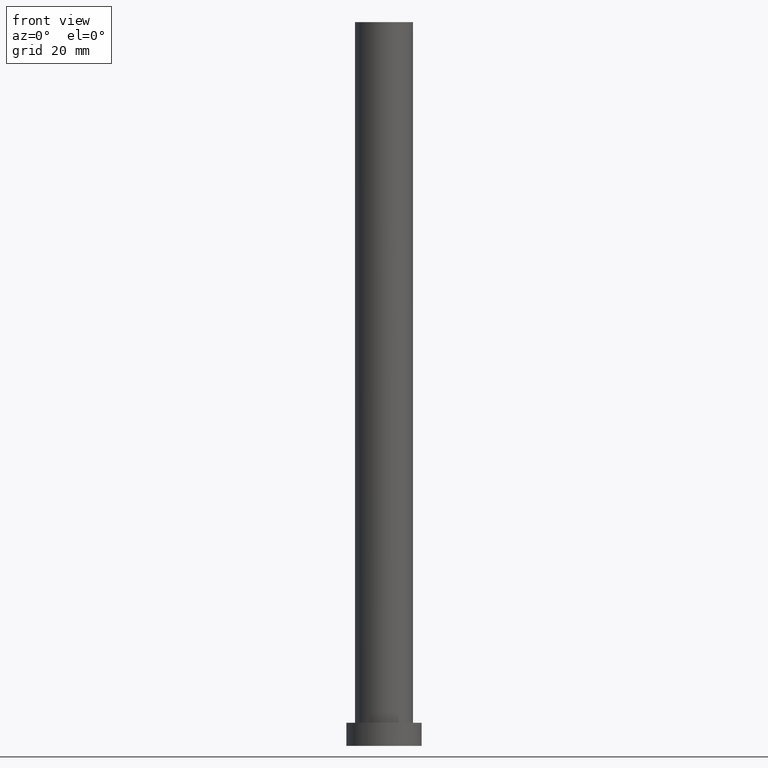
[diagram: clean part render]
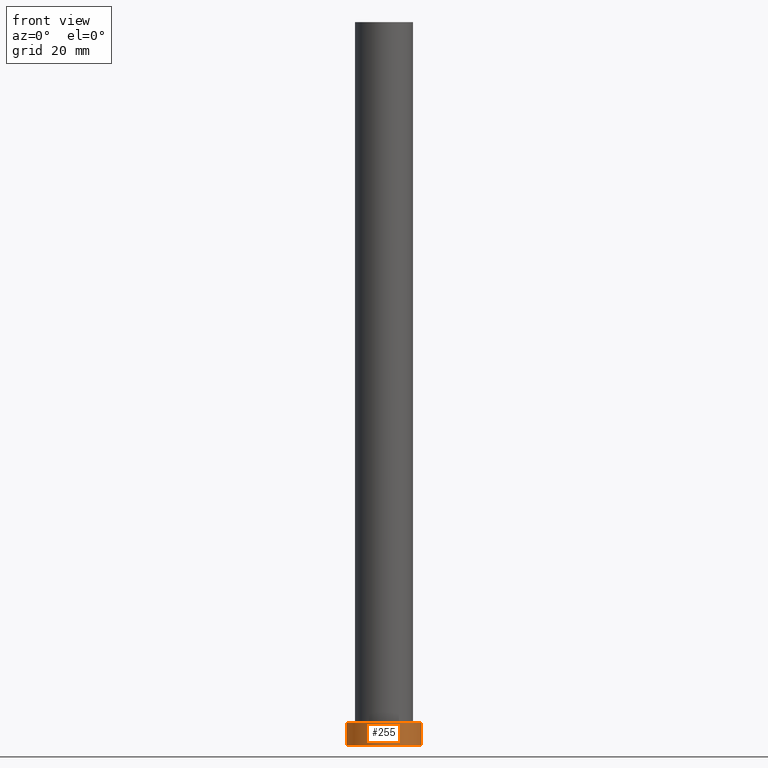
[diagram: same view with one face highlighted and labeled with its STEP entity id]
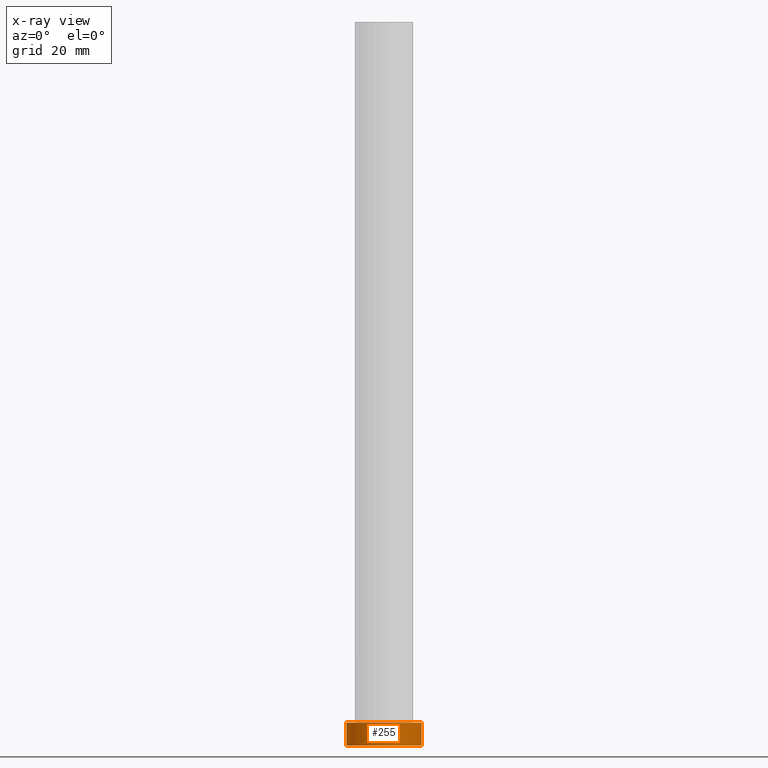
[diagram: x-ray of the same camera — body ghosted, the highlighted face saturated]
A machine part, front view. The second image highlights one B-rep face of the part: STEP entity #255.
The next image is the same camera in x-ray: the body ghosted, the highlighted face saturated — about 0% of this face is hidden behind the body in this view.
In plain terms, the highlighted cylindrical surface (partial cylindrical patch) has radius 13 mm, axis along (-0, -0, -1).
Its self-contained STEP definition (entity closure, byte-faithful):
#18 = AXIS2_PLACEMENT_3D ( 'NONE', #97, #61, #78 ) ;
#20 = CARTESIAN_POINT ( 'NONE',  ( 13.00000000000000178, 1.592040838891559293E-15, 0.000000000000000000 ) ) ;
#23 = AXIS2_PLACEMENT_3D ( 'NONE', #159, #62, #143 ) ;
#24 = CARTESIAN_POINT ( 'NONE',  ( 13.00000000000000178, 1.592040838891559293E-15, 8.000000000000000000 ) ) ;
#31 = VERTEX_POINT ( 'NONE', #20 ) ;
#35 = CARTESIAN_POINT ( 'NONE',  ( -13.00000000000000178, 0.000000000000000000, 8.000000000000000000 ) ) ;
#38 = DIRECTION ( 'NONE',  ( 1.000000000000000000, 0.000000000000000000, 0.000000000000000000 ) ) ;
#39 = CARTESIAN_POINT ( 'NONE',  ( -13.00000000000000178, 0.000000000000000000, 0.000000000000000000 ) ) ;
#51 = CIRCLE ( 'NONE', #173, 13.00000000000000178 ) ;
#58 = LINE ( 'NONE', #84, #242 ) ;
#61 = DIRECTION ( 'NONE',  ( -0.000000000000000000, -0.000000000000000000, -1.000000000000000000 ) ) ;
#62 = DIRECTION ( 'NONE',  ( 0.000000000000000000, 0.000000000000000000, 1.000000000000000000 ) ) ;
#64 = ORIENTED_EDGE ( 'NONE', *, *, #74, .F. ) ;
#71 = VERTEX_POINT ( 'NONE', #35 ) ;
#74 = EDGE_CURVE ( 'NONE', #71, #92, #51, .T. ) ;
#75 = ORIENTED_EDGE ( 'NONE', *, *, #193, .T. ) ;
#78 = DIRECTION ( 'NONE',  ( -1.000000000000000000, 0.000000000000000000, 0.000000000000000000 ) ) ;
#84 = CARTESIAN_POINT ( 'NONE',  ( -13.00000000000000178, 0.000000000000000000, 8.000000000000000000 ) ) ;
#85 = EDGE_CURVE ( 'NONE', #92, #31, #150, .T. ) ;
#86 = CARTESIAN_POINT ( 'NONE',  ( 13.00000000000000178, 1.592040838891559293E-15, 8.000000000000000000 ) ) ;
#92 = VERTEX_POINT ( 'NONE', #24 ) ;
#97 = CARTESIAN_POINT ( 'NONE',  ( 0.000000000000000000, 0.000000000000000000, 8.000000000000000000 ) ) ;
#103 = EDGE_CURVE ( 'NONE', #71, #213, #58, .T. ) ;
#104 = ORIENTED_EDGE ( 'NONE', *, *, #103, .T. ) ;
#105 = DIRECTION ( 'NONE',  ( -0.000000000000000000, -0.000000000000000000, -1.000000000000000000 ) ) ;
#113 = CARTESIAN_POINT ( 'NONE',  ( 0.000000000000000000, 0.000000000000000000, 8.000000000000000000 ) ) ;
#116 = DIRECTION ( 'NONE',  ( 0.000000000000000000, 0.000000000000000000, 1.000000000000000000 ) ) ;
#122 = DIRECTION ( 'NONE',  ( -0.000000000000000000, -0.000000000000000000, -1.000000000000000000 ) ) ;
#133 = CIRCLE ( 'NONE', #23, 13.00000000000000178 ) ;
#143 = DIRECTION ( 'NONE',  ( 1.000000000000000000, 0.000000000000000000, 0.000000000000000000 ) ) ;
#150 = LINE ( 'NONE', #86, #211 ) ;
#158 = CYLINDRICAL_SURFACE ( 'NONE', #18, 13.00000000000000178 ) ;
#159 = CARTESIAN_POINT ( 'NONE',  ( 0.000000000000000000, 0.000000000000000000, 0.000000000000000000 ) ) ;
#168 = ORIENTED_EDGE ( 'NONE', *, *, #85, .F. ) ;
#169 = EDGE_LOOP ( 'NONE', ( #168, #64, #104, #75 ) ) ;
#173 = AXIS2_PLACEMENT_3D ( 'NONE', #113, #116, #38 ) ;
#193 = EDGE_CURVE ( 'NONE', #213, #31, #133, .T. ) ;
#211 = VECTOR ( 'NONE', #122, 1000.000000000000000 ) ;
#213 = VERTEX_POINT ( 'NONE', #39 ) ;
#242 = VECTOR ( 'NONE', #105, 1000.000000000000000 ) ;
#254 = FACE_OUTER_BOUND ( 'NONE', #169, .T. ) ;
#255 = ADVANCED_FACE ( 'NONE', ( #254 ), #158, .T. ) ;